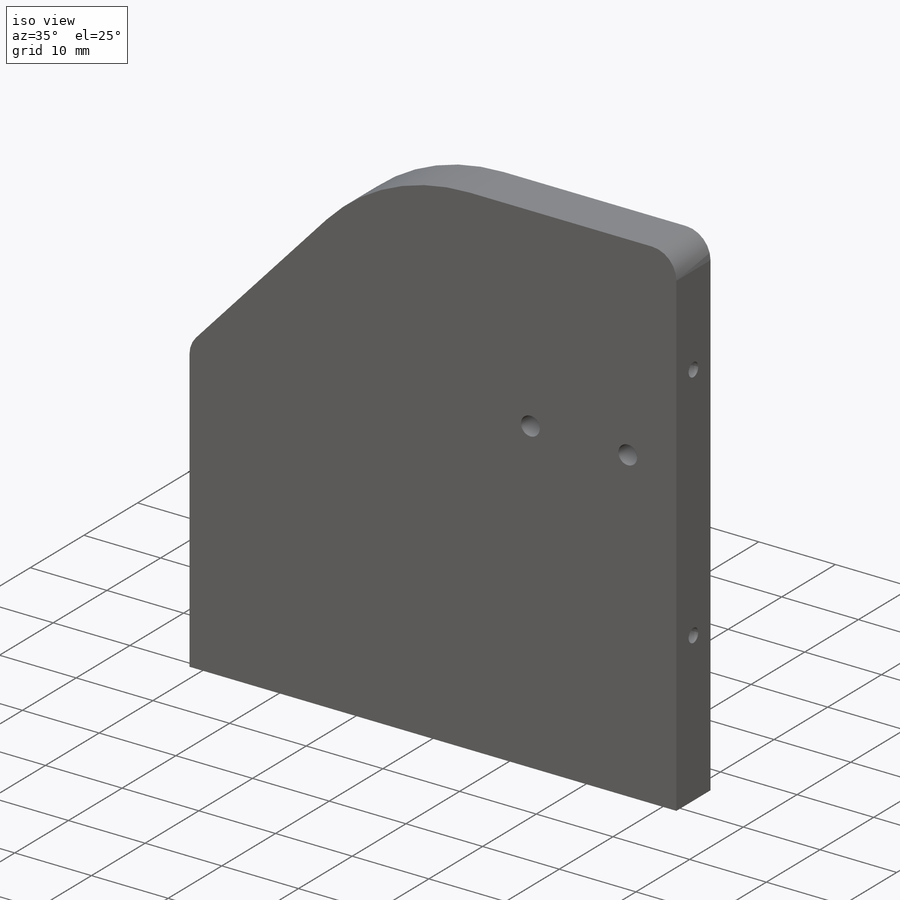
[diagram: iso view]
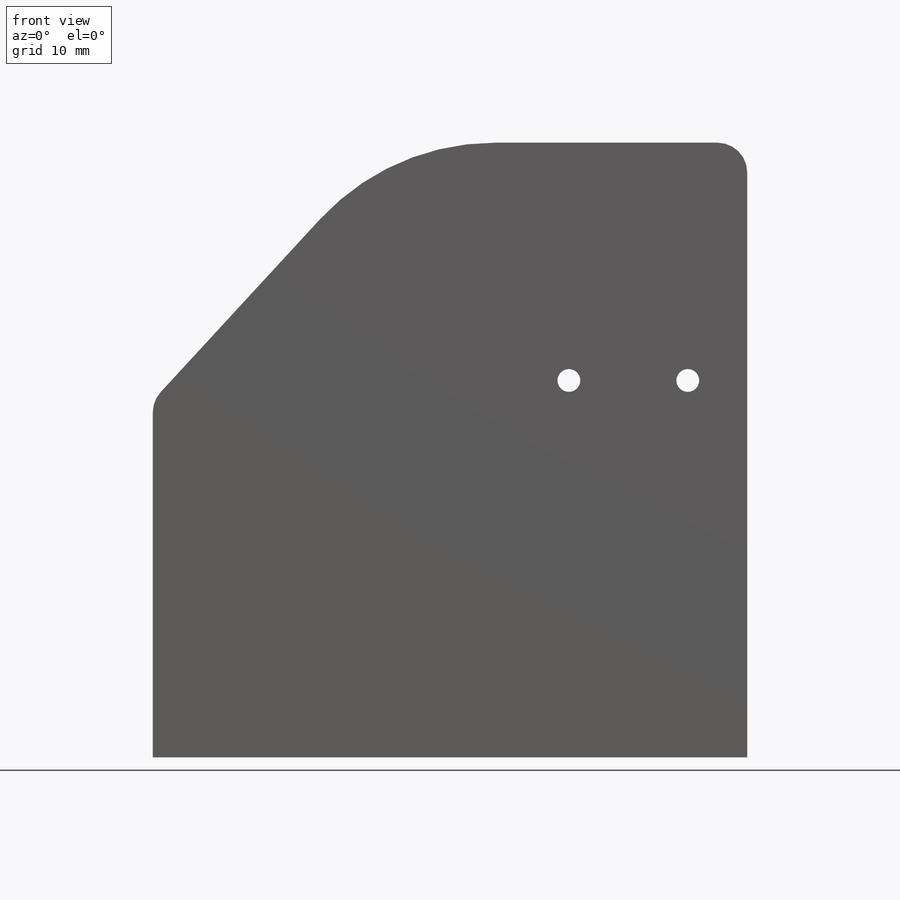
[diagram: front view]
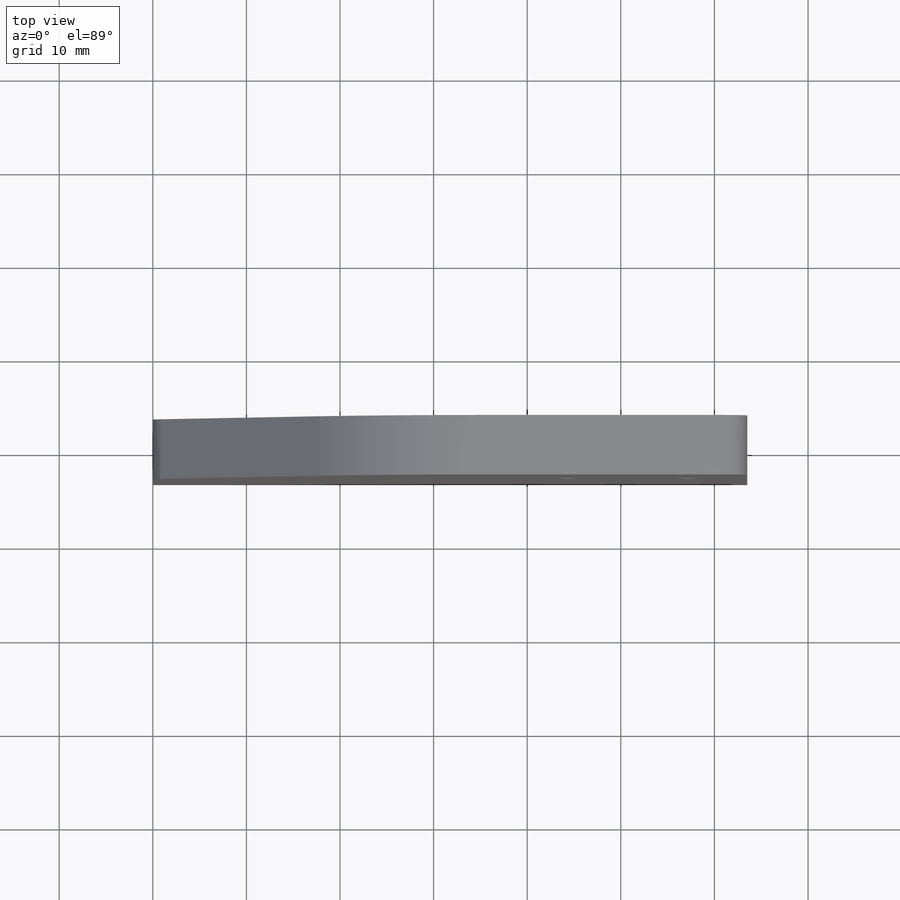
[diagram: top view]
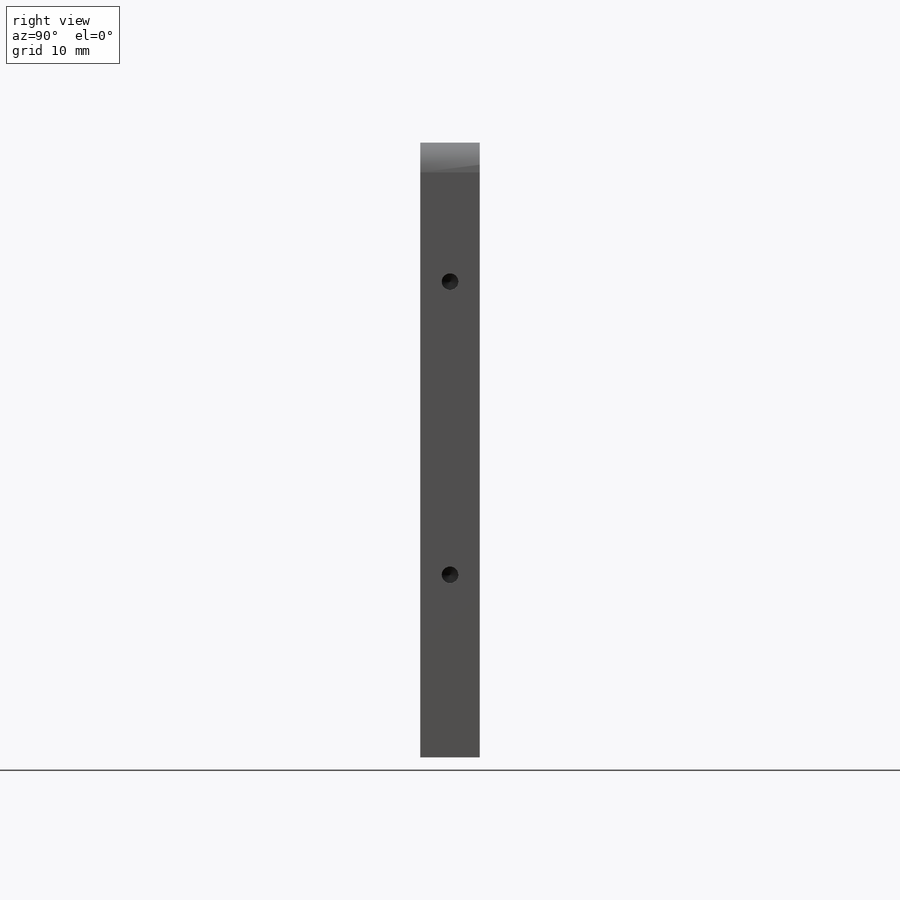
[diagram: right view]
SOLIDWORKS PART (.sldprt)
format: sldprt  version: not decoded by parser v0  size: 337,408 bytes
history: native  units: mm
features: sketch x12, hole x5, thread x5, fillet x3, material x1, extrude x1, cut_extrude x1 (+16 scaffold rows collapsed)
feature tree (44):
  scaffold x16  (default folders/planes/origin — collapsed)
  material  "Material <not specified>"
  sketch  "Sketch1"  dims[c1.D1=65.659mm c1.D2=63.5mm c1.D3=38.1mm c1.D4=38.1mm c1.D5=25.4mm c2.D5=~18.520849deg c3.D5=38.1mm c4.D5=~108.520849deg c5.D5=~26.787368mm]
  extrude  "Boss-Extrude1"  Depth=6.35mm
  fillet  "Fillet1"  Radius=25.4mm
  fillet  "Fillet2"  Radius=3.175mm
  fillet  "Fillet3"  Radius=3.175mm
  hole  "#2-56 Tapped Hole1"  Diameter=1.778mm Depth=5.588mm
  sketch  "Sketch3"
  sketch  "Sketch2"  dims[hole-wizard template sketch: 47 standard entries collapsed; hole parameters kept: c15.Tap Drill Depth=5.588mm c15.D3=~14.816244mm c15.Drill Angle=118.0deg]
  thread  "Hole Thread1"  Diameter=4.318mm  [1 undecoded]
  thread  "Hole Thread2"  Diameter=4.318mm  [1 undecoded]
  hole  "#2 Clearance Hole1"  Diameter=2.4384mm Depth=25.4mm
  sketch  "Sketch11"  dims[D1=12.7mm D2=40.259mm D3=6.35mm]
  sketch  "Sketch10"  dims[hole-wizard template sketch: 47 standard entries collapsed; hole parameters kept: c15.Hole Depth=25.4mm c15.D3=~14.816244mm c15.Drill Angle=118.0deg]
  sketch  "Sketch12"  dims[c1.D1=3.175mm c1.D2=1.5875mm c1.D3=9.525mm c1.D4=3.175mm c1.D5=9.525mm c2.D3=9.525mm]
  cut_extrude  "Cut-Extrude1"  Depth=3.175mm
  hole  "#2-56 Tapped Hole2"  Diameter=1.778mm Depth=5.588mm
  sketch  "Sketch14"
  sketch  "Sketch13"  dims[hole-wizard template sketch: 47 standard entries collapsed; hole parameters kept: c15.Tap Drill Depth=5.588mm c15.D3=~14.816244mm c15.Drill Angle=118.0deg]
  thread  "Hole Thread3"  Diameter=4.318mm  [1 undecoded]
  hole  "#2-56 Tapped Hole3"  Diameter=1.778mm Depth=5.588mm
  sketch  "Sketch16"
  sketch  "Sketch15"  dims[hole-wizard template sketch: 47 standard entries collapsed; hole parameters kept: c15.Tap Drill Depth=5.588mm c15.D3=~14.816244mm c15.Drill Angle=118.0deg]
  thread  "Hole Thread4"  Diameter=4.318mm  [1 undecoded]
  hole  "#2-56 Tapped Hole4"  Diameter=1.778mm Depth=10.668mm
  sketch  "Sketch18"  dims[D1=3.175mm D2=33.3375mm]
  sketch  "Sketch17"  dims[hole-wizard template sketch: 47 standard entries collapsed; hole parameters kept: c15.Tap Drill Depth=10.668mm c15.D3=~14.816244mm c15.Drill Angle=118.0deg]
  thread  "Hole Thread5"  Diameter=4.318mm  [1 undecoded]
decode coverage: 24 of 27 modeling features carry decoded parameters
note: ~ marks probable driven/reference dimensions
note: 5 parameter values undecoded
summary: Diameter pulled from absorbed wizard sketch
note: suppression state not decoded; provenance and decode notes live in map.json
